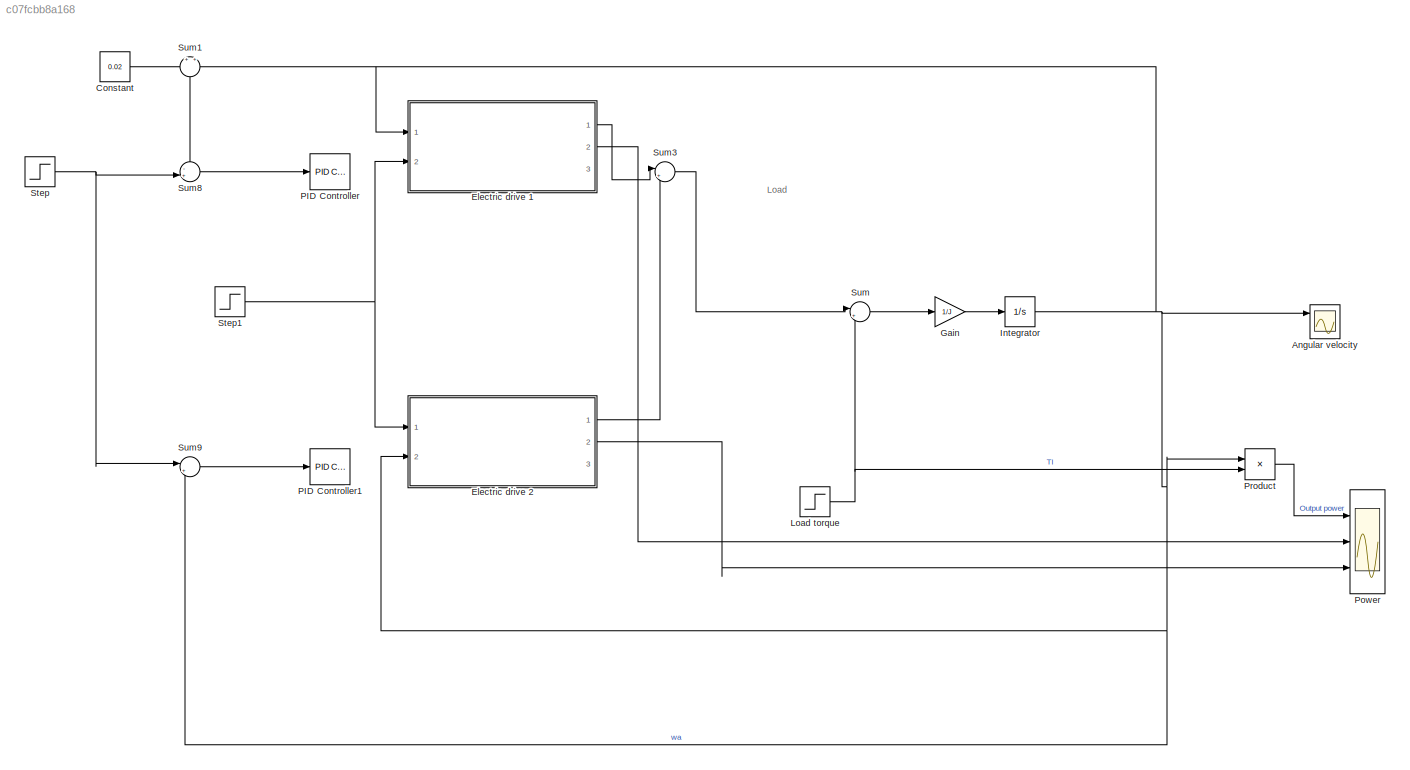
MODEL slx_c07fcbb8a168
KIND model
CONFIG AbsTol = auto
CONFIG EnableMultiTasking = off
CONFIG FixedStep = auto
CONFIG MaxStep = 1e-4
CONFIG MinStep = auto
CONFIG RelTol = 1e-3
CONFIG SampleTimeConstraint = Unconstrained
CONFIG SolverName = VariableStepAuto
CONFIG StartTime = 0.0
CONFIG StopTime = 10
BLOCK [Scope] Angular velocity
  Floating = off
  NumInputPorts = 3
  Ports = [3]
  ScopeSpecificationString = Simulink.scopes.TimeScopeBlockCfg('CurrentConfiguration', extmgr.ConfigurationSet(extmgr.Configuration('Core','General UI',true),extmgr.Configuration('Core','Source UI',true),extmgr.Configuration('Sources','WiredSimulink',true),extmgr.Configuration('Visuals','Time Domain',true,'SerializedDisplays',{struct('MinYLimReal','-0.21175','MaxYLimReal','1.90577','YLabelReal','','MinYLimMag','0.00000','MaxY...<+1419ch>
BLOCK [Constant] Constant
  Value = 0.02
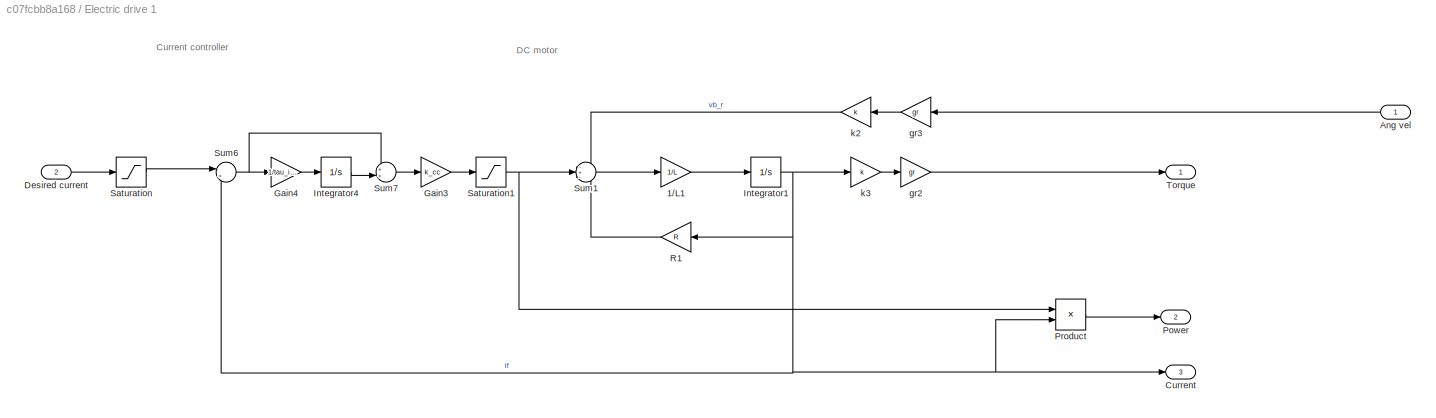
BLOCK [SubSystem] Electric drive 1
  Ports = [2, 3]
  RequestExecContextInheritance = off
BLOCK [Gain] Electric drive 1/1//L1
  Gain = 1/L
BLOCK [Inport] Electric drive 1/Ang vel
BLOCK [Outport] Electric drive 1/Current
  Port = 3
BLOCK [Inport] Electric drive 1/Desired current
  Port = 2
BLOCK [Gain] Electric drive 1/Gain3
  Gain = k_cc
BLOCK [Gain] Electric drive 1/Gain4
  Gain = 1/tau_i_cc
BLOCK [Integrator] Electric drive 1/Integrator1
  Ports = [1, 1]
BLOCK [Integrator] Electric drive 1/Integrator4
  Ports = [1, 1]
BLOCK [Outport] Electric drive 1/Power
  Port = 2
BLOCK [Product] Electric drive 1/Product
  Ports = [2, 1]
BLOCK [Gain] Electric drive 1/R1
  Gain = R
BLOCK [Saturate] Electric drive 1/Saturation
  LowerLimit = -Imax
  UpperLimit = Imax
BLOCK [Saturate] Electric drive 1/Saturation1
  LowerLimit = -Vmax
  UpperLimit = Vmax
BLOCK [Sum] Electric drive 1/Sum1
  Inputs = -+-
  Ports = [3, 1]
BLOCK [Sum] Electric drive 1/Sum6
  Inputs = |+-
  Ports = [2, 1]
BLOCK [Sum] Electric drive 1/Sum7
  Inputs = ++|
  Ports = [2, 1]
BLOCK [Outport] Electric drive 1/Torque
BLOCK [Gain] Electric drive 1/gr2
  Gain = gr
BLOCK [Gain] Electric drive 1/gr3
  Gain = gr
  NameLocation = top
BLOCK [Gain] Electric drive 1/k2
  Gain = k
BLOCK [Gain] Electric drive 1/k3
  Gain = k
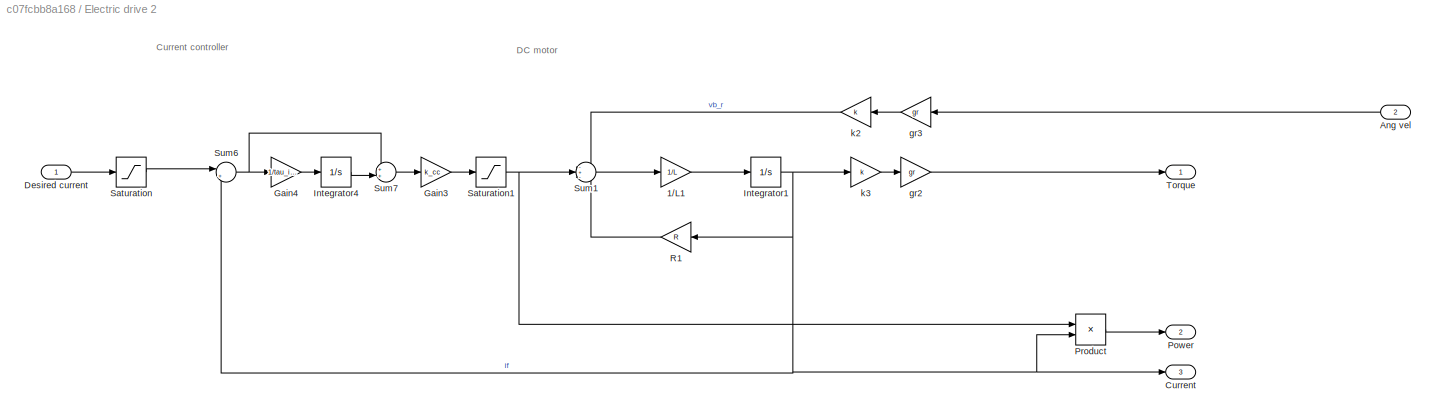
BLOCK [SubSystem] Electric drive 2
  Ports = [2, 3]
  RequestExecContextInheritance = off
BLOCK [Gain] Electric drive 2/1//L1
  Gain = 1/L
BLOCK [Inport] Electric drive 2/Ang vel
  Port = 2
BLOCK [Outport] Electric drive 2/Current
  Port = 3
BLOCK [Inport] Electric drive 2/Desired current
BLOCK [Gain] Electric drive 2/Gain3
  Gain = k_cc
BLOCK [Gain] Electric drive 2/Gain4
  Gain = 1/tau_i_cc
BLOCK [Integrator] Electric drive 2/Integrator1
  Ports = [1, 1]
BLOCK [Integrator] Electric drive 2/Integrator4
  Ports = [1, 1]
BLOCK [Outport] Electric drive 2/Power
  Port = 2
BLOCK [Product] Electric drive 2/Product
  Ports = [2, 1]
BLOCK [Gain] Electric drive 2/R1
  Gain = R
BLOCK [Saturate] Electric drive 2/Saturation
  LowerLimit = -Imax
  UpperLimit = Imax
BLOCK [Saturate] Electric drive 2/Saturation1
  LowerLimit = -Vmax
  UpperLimit = Vmax
BLOCK [Sum] Electric drive 2/Sum1
  Inputs = -+-
  Ports = [3, 1]
BLOCK [Sum] Electric drive 2/Sum6
  Inputs = |+-
  Ports = [2, 1]
BLOCK [Sum] Electric drive 2/Sum7
  Inputs = ++|
  Ports = [2, 1]
BLOCK [Outport] Electric drive 2/Torque
BLOCK [Gain] Electric drive 2/gr2
  Gain = gr
BLOCK [Gain] Electric drive 2/gr3
  Gain = gr
  NameLocation = top
BLOCK [Gain] Electric drive 2/k2
  Gain = k
BLOCK [Gain] Electric drive 2/k3
  Gain = k
BLOCK [Gain] Gain
  Gain = 1/J
BLOCK [Integrator] Integrator
  Ports = [1, 1]
BLOCK [Step] Load torque
  After = 10
  SampleTime = 0
BLOCK [Reference] PID Controller  REF=pid_lib/PID Controller
  Ports = [1, 1]
  SourceBlock = pid_lib/PID Controller
  SourceProductBaseCode = SL
  SourceType = PID 1dof
BLOCK [Reference] PID Controller1  REF=pid_lib/PID Controller
  Ports = [1, 1]
  SourceBlock = pid_lib/PID Controller
  SourceProductBaseCode = SL
  SourceType = PID 1dof
BLOCK [Scope] Power
  Floating = off
  NumInputPorts = 3
  Ports = [3]
  ScopeSpecificationString = Simulink.scopes.TimeScopeBlockCfg('CurrentConfiguration', extmgr.ConfigurationSet(extmgr.Configuration('Core','General UI',true),extmgr.Configuration('Core','Source UI',true),extmgr.Configuration('Sources','WiredSimulink',true,'DataLoggingVariableName','ScopeData1'),extmgr.Configuration('Visuals','Time Domain',true,'SerializedDisplays',{struct('MinYLimReal','-81.15063','MaxYLimReal','454.63253','Y...<+1466ch>
BLOCK [Product] Product
  Ports = [2, 1]
BLOCK [Step] Step
  SampleTime = 0
  Time = 0
BLOCK [Step] Step1
  SampleTime = 0
  Time = 0
BLOCK [Sum] Sum
  Inputs = |+-
  Ports = [2, 1]
BLOCK [Sum] Sum1
  Inputs = +|+
  NameLocation = left
  Ports = [2, 1]
BLOCK [Sum] Sum3
  Inputs = |++
  Ports = [2, 1]
BLOCK [Sum] Sum8
  Inputs = -+|
  Ports = [2, 1]
BLOCK [Sum] Sum9
  Inputs = |+-
  Ports = [2, 1]
ANNOTATION (root): Load
ANNOTATION Electric drive 1: Current controller
ANNOTATION Electric drive 1: DC motor
ANNOTATION Electric drive 2: Current controller
ANNOTATION Electric drive 2: DC motor
LINE Constant:1 -> Sum1:1
LINE Electric drive 1/1//L1:1 -> Electric drive 1/Integrator1:1
LINE Electric drive 1/Ang vel:1 -> Electric drive 1/gr3:1
LINE Electric drive 1/Desired current:1 -> Electric drive 1/Saturation:1
LINE Electric drive 1/Gain3:1 -> Electric drive 1/Saturation1:1
LINE Electric drive 1/Gain4:1 -> Electric drive 1/Integrator4:1
NET Electric drive 1/Integrator1:1 -> Electric drive 1/Current:1, Electric drive 1/Product:2, Electric drive 1/R1:1, Electric drive 1/Sum6:2, Electric drive 1/k3:1
LINE Electric drive 1/Integrator4:1 -> Electric drive 1/Sum7:2
LINE Electric drive 1/Product:1 -> Electric drive 1/Power:1
LINE Electric drive 1/R1:1 -> Electric drive 1/Sum1:3
NET Electric drive 1/Saturation1:1 -> Electric drive 1/Product:1, Electric drive 1/Sum1:2
LINE Electric drive 1/Saturation:1 -> Electric drive 1/Sum6:1
LINE Electric drive 1/Sum1:1 -> Electric drive 1/1//L1:1
NET Electric drive 1/Sum6:1 -> Electric drive 1/Gain4:1, Electric drive 1/Sum7:1
LINE Electric drive 1/Sum7:1 -> Electric drive 1/Gain3:1
LINE Electric drive 1/gr2:1 -> Electric drive 1/Torque:1
LINE Electric drive 1/gr3:1 -> Electric drive 1/k2:1
LINE Electric drive 1/k2:1 -> Electric drive 1/Sum1:1
LINE Electric drive 1/k3:1 -> Electric drive 1/gr2:1
LINE Electric drive 1:1 -> Sum3:1
LINE Electric drive 1:2 -> Power:2
LINE Electric drive 2/1//L1:1 -> Electric drive 2/Integrator1:1
LINE Electric drive 2/Ang vel:1 -> Electric drive 2/gr3:1
LINE Electric drive 2/Desired current:1 -> Electric drive 2/Saturation:1
LINE Electric drive 2/Gain3:1 -> Electric drive 2/Saturation1:1
LINE Electric drive 2/Gain4:1 -> Electric drive 2/Integrator4:1
NET Electric drive 2/Integrator1:1 -> Electric drive 2/Current:1, Electric drive 2/Product:2, Electric drive 2/R1:1, Electric drive 2/Sum6:2, Electric drive 2/k3:1
LINE Electric drive 2/Integrator4:1 -> Electric drive 2/Sum7:2
LINE Electric drive 2/Product:1 -> Electric drive 2/Power:1
LINE Electric drive 2/R1:1 -> Electric drive 2/Sum1:3
NET Electric drive 2/Saturation1:1 -> Electric drive 2/Product:1, Electric drive 2/Sum1:2
LINE Electric drive 2/Saturation:1 -> Electric drive 2/Sum6:1
LINE Electric drive 2/Sum1:1 -> Electric drive 2/1//L1:1
NET Electric drive 2/Sum6:1 -> Electric drive 2/Gain4:1, Electric drive 2/Sum7:1
LINE Electric drive 2/Sum7:1 -> Electric drive 2/Gain3:1
LINE Electric drive 2/gr2:1 -> Electric drive 2/Torque:1
LINE Electric drive 2/gr3:1 -> Electric drive 2/k2:1
LINE Electric drive 2/k2:1 -> Electric drive 2/Sum1:1
LINE Electric drive 2/k3:1 -> Electric drive 2/gr2:1
LINE Electric drive 2:1 -> Sum3:2
LINE Electric drive 2:2 -> Power:3
LINE Gain:1 -> Integrator:1
NET Integrator:1 -> Angular velocity:1, Electric drive 1:1, Electric drive 2:2, Product:1, Sum1:2, Sum9:2
NET Load torque:1 -> Product:2, Sum:2
LINE Product:1 -> Power:1
NET Step1:1 -> Electric drive 1:2, Electric drive 2:1
NET Step:1 -> Sum8:2, Sum9:1
LINE Sum1:1 -> Sum8:1
LINE Sum3:1 -> Sum:1
LINE Sum8:1 -> PID Controller:1
LINE Sum9:1 -> PID Controller1:1
LINE Sum:1 -> Gain:1
note: NET lines group one-source signal fan-out (src -> all destinations, sorted); 1:1 wires keep LINE
